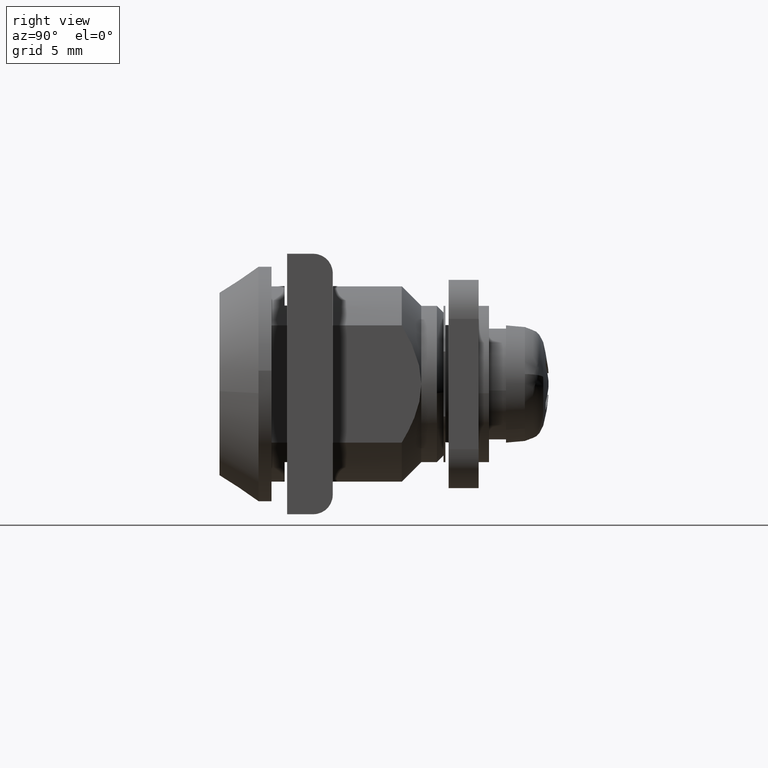
[diagram: clean part render]
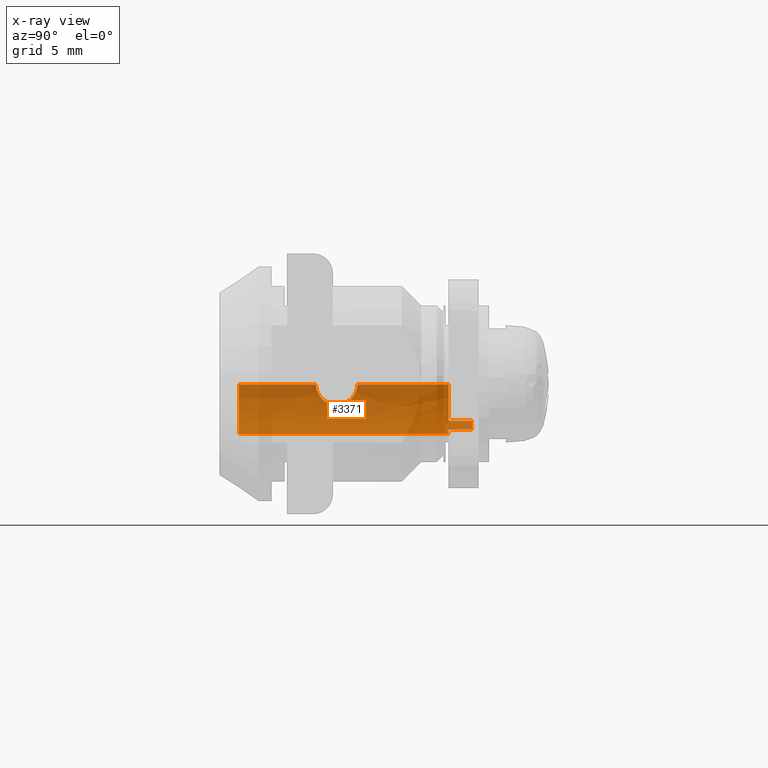
[diagram: x-ray — body ghosted, one internal face saturated and labeled with its STEP entity id]
A machine part, right view, then the same camera in x-ray: the body is ghosted and one INTERNAL B-rep face — a face not visible from any outside direction — is saturated and labeled: STEP entity #3371.
In plain terms, the highlighted face is a freeform B-spline surface patch.
Its self-contained STEP definition (entity closure, byte-faithful):
#2659=CARTESIAN_POINT('',(-4.499865889773548,10.599618000511690,-0.034749582445442));
#2660=VERTEX_POINT('',#2659);
#2693=CARTESIAN_POINT('',(-4.205948168962605,8.999999999999996,-1.600000000000035));
#2694=VERTEX_POINT('',#2693);
#2695=CARTESIAN_POINT('',(-4.205948168962605,8.999999999999996,-1.600000000000035));
#2696=CARTESIAN_POINT('',(-4.205948166922493,9.106654031406098,-1.599999994671111));
#2697=CARTESIAN_POINT('',(-4.210005830803802,9.211334410417004,-1.589444369064784));
#2698=CARTESIAN_POINT('',(-4.221493743737411,9.365564131023458,-1.558560580813978));
#2699=CARTESIAN_POINT('',(-4.226223107491753,9.416505715894290,-1.545738102939652));
#2700=CARTESIAN_POINT('',(-4.237361522488912,9.517443149048265,-1.514937399508364));
#2701=CARTESIAN_POINT('',(-4.243770578713752,9.567338276610935,-1.496952162905390));
#2702=CARTESIAN_POINT('',(-4.264764903861870,9.712291753368046,-1.436523197680855));
#2703=CARTESIAN_POINT('',(-4.281231928753004,9.803817803202605,-1.387350168888271));
#2704=CARTESIAN_POINT('',(-4.308140247563218,9.933735613190493,-1.300326554142621));
#2705=CARTESIAN_POINT('',(-4.317525694509896,9.975988149619223,-1.268919294218309));
#2706=CARTESIAN_POINT('',(-4.336430623487842,10.056481948323540,-1.202727612927087));
#2707=CARTESIAN_POINT('',(-4.345972805502177,10.094860322250740,-1.167881740568660));
#2708=CARTESIAN_POINT('',(-4.374471635762361,10.204566621492299,-1.058162897255486));
#2709=CARTESIAN_POINT('',(-4.393318106996161,10.270568338937091,-0.978101134943159));
#2710=CARTESIAN_POINT('',(-4.428567354710617,10.387553913777060,-0.803565156998944));
#2711=CARTESIAN_POINT('',(-4.444397913935076,10.436693294562801,-0.711858670309365));
#2712=CARTESIAN_POINT('',(-4.464314225983324,10.496810538765191,-0.567672395080473));
#2713=CARTESIAN_POINT('',(-4.470315458103933,10.514566572094949,-0.518498054895931));
#2714=CARTESIAN_POINT('',(-4.480845520882004,10.545369503605770,-0.417832434382650));
#2715=CARTESIAN_POINT('',(-4.485383665652313,10.558441917705480,-0.366092109682826));
#2716=CARTESIAN_POINT('',(-4.495481155231493,10.587334456667801,-0.221895897386430));
#2717=CARTESIAN_POINT('',(-4.499141004806070,10.597590894736300,-0.128696732074164));
#2718=CARTESIAN_POINT('',(-4.499865889773548,10.599618000511690,-0.034749582445442));
#2719=B_SPLINE_CURVE_WITH_KNOTS('',3,(#2695,#2696,#2697,#2698,#2699,#2700,#2701,#2702,#2703,#2704,#2705,#2706,#2707,#2708,#2709,#2710,#2711,#2712,#2713,#2714,#2715,#2716,#2717,#2718),.UNSPECIFIED.,.F.,.U.,(4,2,2,2,2,2,2,2,2,2,2,4),(0.0,0.031250000000001,0.046875000000001,0.062500000000001,0.093750000000001,0.109375000000001,0.125000000000001,0.156250000000001,0.187500000000002,0.203125000000002,0.218750000000002,0.246666929899543),.UNSPECIFIED.);
#2720=EDGE_CURVE('',#2694,#2660,#2719,.T.);
#2722=CARTESIAN_POINT('',(-4.305045140965110,8.081624518640993,-1.310186052710650));
#2723=VERTEX_POINT('',#2722);
#2724=CARTESIAN_POINT('',(-4.305045140965110,8.081624518640993,-1.310186052710650));
#2725=CARTESIAN_POINT('',(-4.303021555424292,8.091110215128172,-1.316835073625573));
#2726=CARTESIAN_POINT('',(-4.301014139051982,8.100660736137861,-1.323375501771189));
#2727=CARTESIAN_POINT('',(-4.281169890750548,8.196545384131232,-1.387528276570392));
#2728=CARTESIAN_POINT('',(-4.264717312531952,8.287960198641031,-1.436666462877149));
#2729=CARTESIAN_POINT('',(-4.243688796289474,8.433262555957096,-1.497184514543419));
#2730=CARTESIAN_POINT('',(-4.237272023244448,8.483303660032044,-1.515186994332408));
#2731=CARTESIAN_POINT('',(-4.226181408625735,8.583934852000306,-1.545851392647546));
#2732=CARTESIAN_POINT('',(-4.221467603442742,8.634750569206892,-1.558631222152479));
#2733=CARTESIAN_POINT('',(-4.210009337194195,8.788689095467445,-1.589434312917072));
#2734=CARTESIAN_POINT('',(-4.205948168962604,8.893345722378369,-1.600000000000035));
#2735=CARTESIAN_POINT('',(-4.205948168962605,8.999999999999998,-1.600000000000035));
#2736=B_SPLINE_CURVE_WITH_KNOTS('',3,(#2724,#2725,#2726,#2727,#2728,#2729,#2730,#2731,#2732,#2733,#2734,#2735),.UNSPECIFIED.,.F.,.U.,(4,2,2,2,2,4),(0.902767125284222,0.906250000000002,0.937500000000001,0.953125000000001,0.968750000000001,1.0),.UNSPECIFIED.);
#2737=EDGE_CURVE('',#2723,#2694,#2736,.T.);
#2781=CARTESIAN_POINT('',(-4.499865893246158,7.400377466228119,-0.034749382782677));
#2782=VERTEX_POINT('',#2781);
#2783=CARTESIAN_POINT('',(-4.499865893246158,7.400377466228119,-0.034749382782677));
#2784=CARTESIAN_POINT('',(-4.499142643025120,7.402399812469667,-0.128486016836933));
#2785=CARTESIAN_POINT('',(-4.495497157743674,7.412616526146905,-0.221522059701604));
#2786=CARTESIAN_POINT('',(-4.485417373695974,7.441456959405394,-0.365691994588220));
#2787=CARTESIAN_POINT('',(-4.480883848954063,7.454515432315335,-0.417422113635377));
#2788=CARTESIAN_POINT('',(-4.470361595638650,7.485293442540704,-0.518100876820029));
#2789=CARTESIAN_POINT('',(-4.458353433557159,7.520819527970164,-0.616587151630685));
#2790=CARTESIAN_POINT('',(-4.443748471303994,7.565620021094598,-0.710832744682187));
#2791=CARTESIAN_POINT('',(-4.428027201419049,7.615091697527604,-0.802968730006343));
#2792=CARTESIAN_POINT('',(-4.419559789853197,7.642326482604259,-0.848206092248264));
#2793=CARTESIAN_POINT('',(-4.393225719226853,7.729756466427427,-0.978477456970987));
#2794=CARTESIAN_POINT('',(-4.374415812421616,7.795620135916349,-1.058406558689014));
#2795=CARTESIAN_POINT('',(-4.345838650433001,7.905665969687830,-1.168383787429202));
#2796=CARTESIAN_POINT('',(-4.336246035201950,7.944263331938168,-1.203398032693535));
#2797=CARTESIAN_POINT('',(-4.319350357929978,8.016270600476133,-1.262511332972800));
#2798=CARTESIAN_POINT('',(-4.312099710384713,8.048554630157295,-1.287006947467491));
#2799=CARTESIAN_POINT('',(-4.305045140965110,8.081624518640993,-1.310186052710650));
#2800=B_SPLINE_CURVE_WITH_KNOTS('',3,(#2783,#2784,#2785,#2786,#2787,#2788,#2789,#2790,#2791,#2792,#2793,#2794,#2795,#2796,#2797,#2798,#2799),.UNSPECIFIED.,.F.,.U.,(4,2,2,1,2,2,2,2,4),(0.753417685442452,0.781250000000004,0.796875000000004,0.812500000000004,0.828125000000004,0.843750000000003,0.875000000000003,0.890625000000002,0.902767125284220),.UNSPECIFIED.);
#2801=EDGE_CURVE('',#2782,#2723,#2800,.T.);
#3022=CARTESIAN_POINT('',(-2.339605236195122,1.500000000000045,-3.843988467564433));
#3023=VERTEX_POINT('',#3022);
#3039=CARTESIAN_POINT('',(-2.339605236179057,17.600000000000001,-3.843988467574210));
#3040=VERTEX_POINT('',#3039);
#3041=CARTESIAN_POINT('',(-2.339605236179057,17.600000000000001,-3.843988467574210));
#3042=CARTESIAN_POINT('',(-2.339605236195122,1.500000000000045,-3.843988467564433));
#3043=QUASI_UNIFORM_CURVE('',1,(#3041,#3042),.UNSPECIFIED.,.F.,.U.);
#3044=EDGE_CURVE('',#3040,#3023,#3043,.T.);
#3178=CARTESIAN_POINT('',(-4.499865832401815,17.600000000000001,-0.034748962325657));
#3179=VERTEX_POINT('',#3178);
#3193=CARTESIAN_POINT('',(-4.499865832401815,17.600000000000001,-0.034748962325657));
#3194=CARTESIAN_POINT('',(-4.499865889773548,10.599618000511690,-0.034749582445442));
#3195=QUASI_UNIFORM_CURVE('',1,(#3193,#3194),.UNSPECIFIED.,.F.,.U.);
#3196=EDGE_CURVE('',#3179,#2660,#3195,.T.);
#3201=CARTESIAN_POINT('',(-4.499865832800414,1.500000000000114,-0.034748910708457));
#3202=VERTEX_POINT('',#3201);
#3203=CARTESIAN_POINT('',(-4.499865893246158,7.400377466228119,-0.034749382782677));
#3204=CARTESIAN_POINT('',(-4.499865832800414,1.500000000000114,-0.034748910708457));
#3205=QUASI_UNIFORM_CURVE('',1,(#3203,#3204),.UNSPECIFIED.,.F.,.U.);
#3206=EDGE_CURVE('',#2782,#3202,#3205,.T.);
#3279=CARTESIAN_POINT('',(-4.499865832800809,19.847500000000011,-0.034748910657317));
#3280=CARTESIAN_POINT('',(-4.480512446595931,19.847500000000011,-2.540946649952141));
#3281=CARTESIAN_POINT('',(-2.339605236193152,19.847500000000014,-3.843988467565632));
#3282=CARTESIAN_POINT('',(-4.499865832800809,1.041312500000000,-0.034748910657317));
#3283=CARTESIAN_POINT('',(-4.480512446595931,1.041312500000000,-2.540946649952141));
#3284=CARTESIAN_POINT('',(-2.339605236193152,1.041312500000000,-3.843988467565632));
#3292=(BOUNDED_SURFACE()B_SPLINE_SURFACE(2,1,((#3279,#3282),(#3280,#3283),(#3281,#3284)),.UNSPECIFIED.,.F.,.F.,.U.)B_SPLINE_SURFACE_WITH_KNOTS((3,3),(2,2),(0.0,4.708405993807222),(0.0,18.806187500000011),.UNSPECIFIED.)GEOMETRIC_REPRESENTATION_ITEM()RATIONAL_B_SPLINE_SURFACE(((1.0,1.0),(0.812548339959390,0.812548339959390),(0.865034804770761,0.865034804770761)))REPRESENTATION_ITEM('')SURFACE());
#3293=CARTESIAN_POINT('',(-4.499865832800415,1.500000000000114,-0.034748910708457));
#3294=CARTESIAN_POINT('',(-4.480512446538719,1.500000000000114,-2.540946649983949));
#3295=CARTESIAN_POINT('',(-2.339605236195122,1.500000000000046,-3.843988467564433));
#3303=(BOUNDED_CURVE()B_SPLINE_CURVE(2,(#3293,#3294,#3295),.UNSPECIFIED.,.F.,.U.)B_SPLINE_CURVE_WITH_KNOTS((3,3),(0.503048231644936,0.870169959740412),.UNSPECIFIED.)CURVE()GEOMETRIC_REPRESENTATION_ITEM()RATIONAL_B_SPLINE_CURVE((0.997268428807401,0.833785448768221,0.913338404636528))REPRESENTATION_ITEM(''));
#3304=EDGE_CURVE('',#3202,#3023,#3303,.T.);
#3305=ORIENTED_EDGE('',*,*,#3304,.F.);
#3306=ORIENTED_EDGE('',*,*,#3206,.F.);
#3307=ORIENTED_EDGE('',*,*,#2801,.T.);
#3308=ORIENTED_EDGE('',*,*,#2737,.T.);
#3309=ORIENTED_EDGE('',*,*,#2720,.T.);
#3310=ORIENTED_EDGE('',*,*,#3196,.F.);
#3311=CARTESIAN_POINT('',(-3.500000000000000,17.600000000000001,-2.828427124746185));
#3312=VERTEX_POINT('',#3311);
#3313=CARTESIAN_POINT('',(-4.499865832401815,17.599999999999998,-0.034748962325657));
#3314=CARTESIAN_POINT('',(-4.487730933517787,17.600000000000005,-1.606172452859431));
#3315=CARTESIAN_POINT('',(-3.500000000000003,17.600000000000001,-2.828427124746186));
#3323=(BOUNDED_CURVE()B_SPLINE_CURVE(2,(#3313,#3314,#3315),.UNSPECIFIED.,.F.,.U.)B_SPLINE_CURVE_WITH_KNOTS((3,3),(0.505460362163918,1.0),.UNSPECIFIED.)CURVE()GEOMETRIC_REPRESENTATION_ITEM()RATIONAL_B_SPLINE_CURVE((0.888902140246649,0.890102302703093,1.0))REPRESENTATION_ITEM(''));
#3324=EDGE_CURVE('',#3179,#3312,#3323,.T.);
#3325=ORIENTED_EDGE('',*,*,#3324,.T.);
#3326=CARTESIAN_POINT('',(-3.500000000000000,19.399999999999999,-2.828427124746185));
#3327=VERTEX_POINT('',#3326);
#3328=CARTESIAN_POINT('',(-3.500000000000000,19.399999999999999,-2.828427124746185));
#3329=CARTESIAN_POINT('',(-3.500000000000000,17.600000000000001,-2.828427124746185));
#3330=QUASI_UNIFORM_CURVE('',1,(#3328,#3329),.UNSPECIFIED.,.F.,.U.);
#3331=EDGE_CURVE('',#3327,#3312,#3330,.T.);
#3332=ORIENTED_EDGE('',*,*,#3331,.F.);
#3333=CARTESIAN_POINT('',(-2.828427124746190,19.399999999999999,-3.500000000000000));
#3334=VERTEX_POINT('',#3333);
#3335=CARTESIAN_POINT('',(-3.500000000000003,19.399999999999999,-2.828427124746185));
#3336=CARTESIAN_POINT('',(-3.199847229150508,19.400000000000006,-3.199847229150504));
#3337=CARTESIAN_POINT('',(-2.828427124746189,19.399999999999999,-3.500000000000000));
#3345=(BOUNDED_CURVE()B_SPLINE_CURVE(2,(#3335,#3336,#3337),.UNSPECIFIED.,.F.,.U.)CURVE()GEOMETRIC_REPRESENTATION_ITEM()QUASI_UNIFORM_CURVE()RATIONAL_B_SPLINE_CURVE((1.0,0.994416385367315,1.0))REPRESENTATION_ITEM(''));
#3346=EDGE_CURVE('',#3327,#3334,#3345,.T.);
#3347=ORIENTED_EDGE('',*,*,#3346,.T.);
#3348=CARTESIAN_POINT('',(-2.828427124746190,17.600000000000001,-3.500000000000000));
#3349=VERTEX_POINT('',#3348);
#3350=CARTESIAN_POINT('',(-2.828427124746190,17.600000000000001,-3.500000000000000));
#3351=CARTESIAN_POINT('',(-2.828427124746190,19.399999999999999,-3.500000000000000));
#3352=QUASI_UNIFORM_CURVE('',1,(#3350,#3351),.UNSPECIFIED.,.F.,.U.);
#3353=EDGE_CURVE('',#3349,#3334,#3352,.T.);
#3354=ORIENTED_EDGE('',*,*,#3353,.F.);
#3355=CARTESIAN_POINT('',(-2.828427124746189,17.600000000000001,-3.500000000000000));
#3356=CARTESIAN_POINT('',(-2.595464257554023,17.600000000000001,-3.688262426464277));
#3357=CARTESIAN_POINT('',(-2.339605236179057,17.600000000000001,-3.843988467574210));
#3365=(BOUNDED_CURVE()B_SPLINE_CURVE(2,(#3355,#3356,#3357),.UNSPECIFIED.,.F.,.U.)B_SPLINE_CURVE_WITH_KNOTS((3,3),(0.0,0.103462844125657),.UNSPECIFIED.)CURVE()GEOMETRIC_REPRESENTATION_ITEM()RATIONAL_B_SPLINE_CURVE((1.0,0.977008256860965,0.958774095995073))REPRESENTATION_ITEM(''));
#3366=EDGE_CURVE('',#3349,#3040,#3365,.T.);
#3367=ORIENTED_EDGE('',*,*,#3366,.T.);
#3368=ORIENTED_EDGE('',*,*,#3044,.T.);
#3369=EDGE_LOOP('',(#3305,#3306,#3307,#3308,#3309,#3310,#3325,#3332,#3347,#3354,#3367,#3368));
#3370=FACE_OUTER_BOUND('',#3369,.T.);
#3371=ADVANCED_FACE('',(#3370),#3292,.T.);